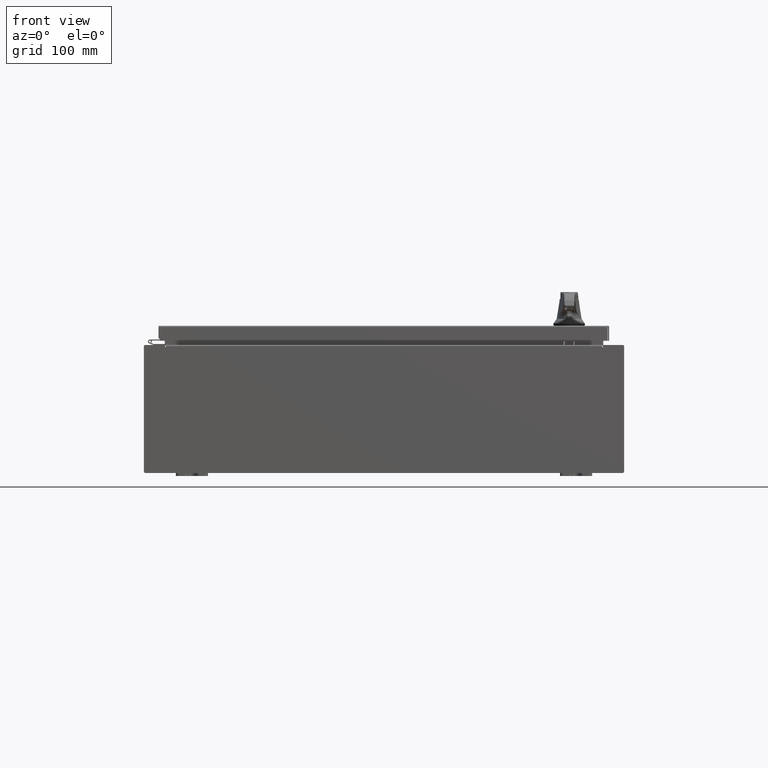
[diagram: clean part render]
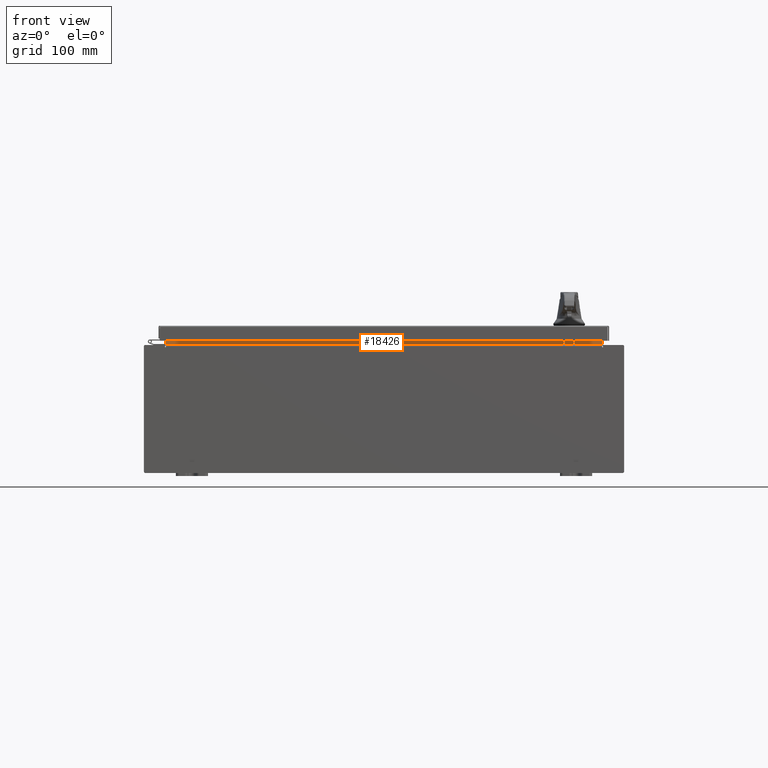
[diagram: same view with one face highlighted and labeled with its STEP entity id]
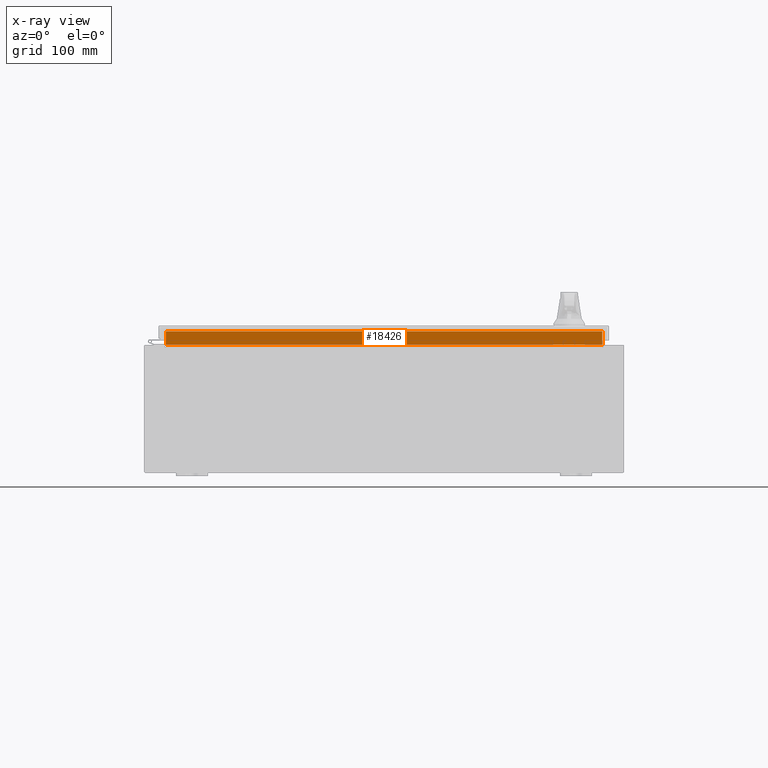
[diagram: x-ray of the same camera — body ghosted, the highlighted face saturated]
A machine part, front view. The second image highlights one B-rep face of the part: STEP entity #18426.
The next image is the same camera in x-ray: the body ghosted, the highlighted face saturated — about 0% of this face is hidden behind the body in this view.
In plain terms, the highlighted planar face has unit normal (0, -1, 0).
Its self-contained STEP definition (entity closure, byte-faithful):
#1968 = PLANE ( 'NONE',  #98966 ) ;
#4775 = ORIENTED_EDGE ( 'NONE', *, *, #71627, .F. ) ;
#7566 = VERTEX_POINT ( 'NONE', #30672 ) ;
#11119 = DIRECTION ( 'NONE',  ( 0.0000000000000000000, -0.0000000000000000000, 1.000000000000000000 ) ) ;
#18426 = ADVANCED_FACE ( 'NONE', ( #69637 ), #1968, .T. ) ;
#20706 = VERTEX_POINT ( 'NONE', #58948 ) ;
#25129 = ORIENTED_EDGE ( 'NONE', *, *, #87570, .F. ) ;
#30672 = CARTESIAN_POINT ( 'NONE',  ( 13.63720000000000400, -1.300299999999999800, 4.837600000000003700 ) ) ;
#32410 = DIRECTION ( 'NONE',  ( -0.0000000000000000000, -0.0000000000000000000, -1.000000000000000000 ) ) ;
#36596 = EDGE_LOOP ( 'NONE', ( #25129, #4775, #72866, #79147 ) ) ;
#39588 = DIRECTION ( 'NONE',  ( 1.000000000000000000, 0.0000000000000000000, -2.003232330437526000E-017 ) ) ;
#40343 = CARTESIAN_POINT ( 'NONE',  ( 13.63720000000000000, -1.300299999999999800, 4.013000000000003500 ) ) ;
#43442 = VECTOR ( 'NONE', #66327, 39.37007874015748100 ) ;
#53335 = VECTOR ( 'NONE', #66984, 39.37007874015748100 ) ;
#54067 = VERTEX_POINT ( 'NONE', #89547 ) ;
#56141 = LINE ( 'NONE', #103283, #53335 ) ;
#56458 = EDGE_CURVE ( 'NONE', #98362, #7566, #56141, .T. ) ;
#57182 = CARTESIAN_POINT ( 'NONE',  ( 13.63720000000000400, -1.300299999999999300, 4.837600000000003700 ) ) ;
#57970 = CARTESIAN_POINT ( 'NONE',  ( -13.63719999999999800, -1.300299999999999800, 4.013000000000003500 ) ) ;
#58948 = CARTESIAN_POINT ( 'NONE',  ( -13.63719999999999800, -1.300299999999999800, 4.013000000000003500 ) ) ;
#65777 = DIRECTION ( 'NONE',  ( 0.0000000000000000000, 1.000000000000000000, 0.0000000000000000000 ) ) ;
#66025 = VECTOR ( 'NONE', #32410, 39.37007874015748100 ) ;
#66327 = DIRECTION ( 'NONE',  ( -1.000000000000000000, -0.0000000000000000000, -0.0000000000000000000 ) ) ;
#66984 = DIRECTION ( 'NONE',  ( -0.0000000000000000000, -0.0000000000000000000, 1.000000000000000000 ) ) ;
#69637 = FACE_OUTER_BOUND ( 'NONE', #36596, .T. ) ;
#71165 = LINE ( 'NONE', #57970, #92583 ) ;
#71627 = EDGE_CURVE ( 'NONE', #7566, #54067, #116304, .T. ) ;
#72866 = ORIENTED_EDGE ( 'NONE', *, *, #56458, .F. ) ;
#79147 = ORIENTED_EDGE ( 'NONE', *, *, #108681, .F. ) ;
#87528 = LINE ( 'NONE', #96288, #66025 ) ;
#87570 = EDGE_CURVE ( 'NONE', #54067, #20706, #87528, .T. ) ;
#89547 = CARTESIAN_POINT ( 'NONE',  ( -13.63719999999999800, -1.300299999999999300, 4.837600000000003700 ) ) ;
#92583 = VECTOR ( 'NONE', #39588, 39.37007874015748100 ) ;
#96288 = CARTESIAN_POINT ( 'NONE',  ( -13.63719999999999800, -1.300299999999999800, 4.000000000000004400 ) ) ;
#98362 = VERTEX_POINT ( 'NONE', #40343 ) ;
#98966 = AXIS2_PLACEMENT_3D ( 'NONE', #102105, #65777, #11119 ) ;
#102105 = CARTESIAN_POINT ( 'NONE',  ( 0.0000000000000000000, -1.300299999999999800, 0.0000000000000000000 ) ) ;
#103283 = CARTESIAN_POINT ( 'NONE',  ( 13.63720000000000400, -1.300299999999999800, 4.925300000000004500 ) ) ;
#108681 = EDGE_CURVE ( 'NONE', #20706, #98362, #71165, .T. ) ;
#116304 = LINE ( 'NONE', #57182, #43442 ) ;